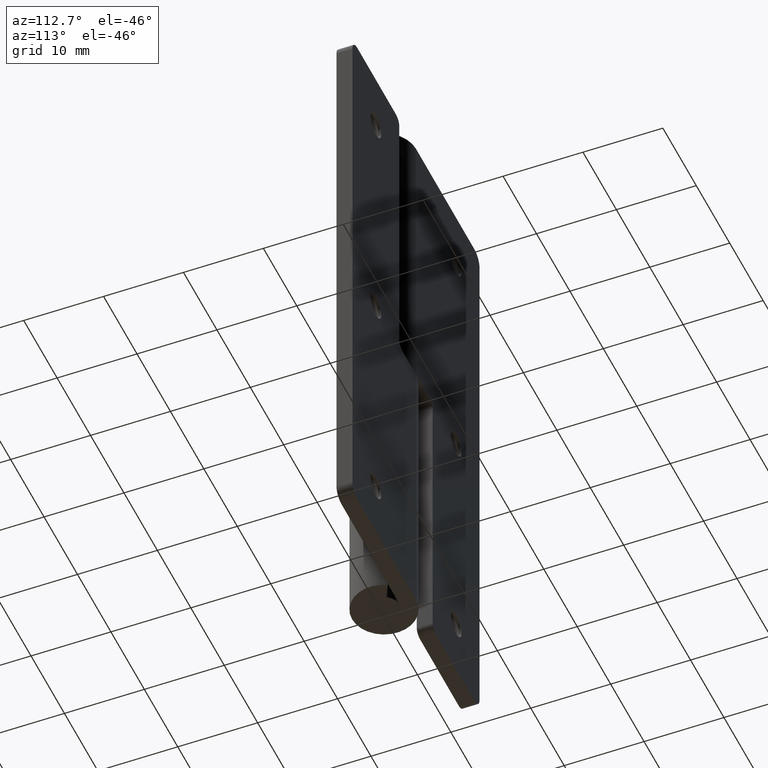
[diagram: clean part render]
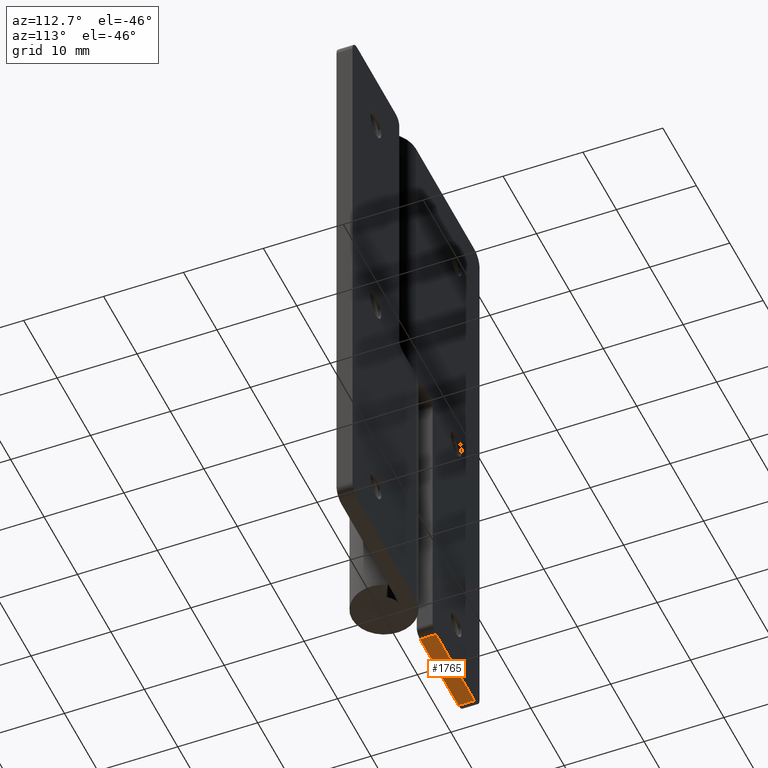
[diagram: same view with one face highlighted and labeled with its STEP entity id]
A machine part, auxiliary view. The second image highlights one B-rep face of the part: STEP entity #1765.
In plain terms, the highlighted face is a freeform B-spline surface patch.
Its self-contained STEP definition (entity closure, byte-faithful):
#1312=CARTESIAN_POINT('',(-6.0,2.0,0.0));
#1313=VERTEX_POINT('',#1312);
#1329=CARTESIAN_POINT('',(-6.0,4.0,0.0));
#1330=VERTEX_POINT('',#1329);
#1331=CARTESIAN_POINT('',(-6.0,4.0,0.0));
#1332=CARTESIAN_POINT('',(-6.0,2.0,0.0));
#1333=QUASI_UNIFORM_CURVE('',1,(#1331,#1332),.UNSPECIFIED.,.F.,.U.);
#1334=EDGE_CURVE('',#1330,#1313,#1333,.T.);
#1567=CARTESIAN_POINT('',(-17.500000000000000,2.0,0.0));
#1568=VERTEX_POINT('',#1567);
#1589=CARTESIAN_POINT('',(-17.500000000000000,4.0,0.0));
#1590=VERTEX_POINT('',#1589);
#1604=CARTESIAN_POINT('',(-17.500000000000000,4.0,0.0));
#1605=CARTESIAN_POINT('',(-17.500000000000000,2.0,0.0));
#1606=QUASI_UNIFORM_CURVE('',1,(#1604,#1605),.UNSPECIFIED.,.F.,.U.);
#1607=EDGE_CURVE('',#1590,#1568,#1606,.T.);
#1746=CARTESIAN_POINT('',(-18.074424977710770,1.900100003876388,0.0));
#1747=CARTESIAN_POINT('',(-5.425574713835194,1.900100003876388,0.0));
#1748=CARTESIAN_POINT('',(-18.074424977710770,4.099900049767792,0.0));
#1749=CARTESIAN_POINT('',(-5.425574713835194,4.099900049767792,0.0));
#1750=B_SPLINE_SURFACE_WITH_KNOTS('',1,1,((#1746,#1748),(#1747,#1749)),.UNSPECIFIED.,.F.,.F.,.U.,(2,2),(2,2),(0.0,12.648850263875580),(0.0,2.199800045891404),.UNSPECIFIED.);
#1751=ORIENTED_EDGE('',*,*,#1334,.T.);
#1752=CARTESIAN_POINT('',(-17.500000000000000,2.0,0.0));
#1753=CARTESIAN_POINT('',(-6.0,2.0,0.0));
#1754=QUASI_UNIFORM_CURVE('',1,(#1752,#1753),.UNSPECIFIED.,.F.,.U.);
#1755=EDGE_CURVE('',#1568,#1313,#1754,.T.);
#1756=ORIENTED_EDGE('',*,*,#1755,.F.);
#1757=ORIENTED_EDGE('',*,*,#1607,.F.);
#1758=CARTESIAN_POINT('',(-6.0,4.0,0.0));
#1759=CARTESIAN_POINT('',(-17.500000000000000,4.0,0.0));
#1760=QUASI_UNIFORM_CURVE('',1,(#1758,#1759),.UNSPECIFIED.,.F.,.U.);
#1761=EDGE_CURVE('',#1330,#1590,#1760,.T.);
#1762=ORIENTED_EDGE('',*,*,#1761,.F.);
#1763=EDGE_LOOP('',(#1751,#1756,#1757,#1762));
#1764=FACE_OUTER_BOUND('',#1763,.T.);
#1765=ADVANCED_FACE('',(#1764),#1750,.F.);